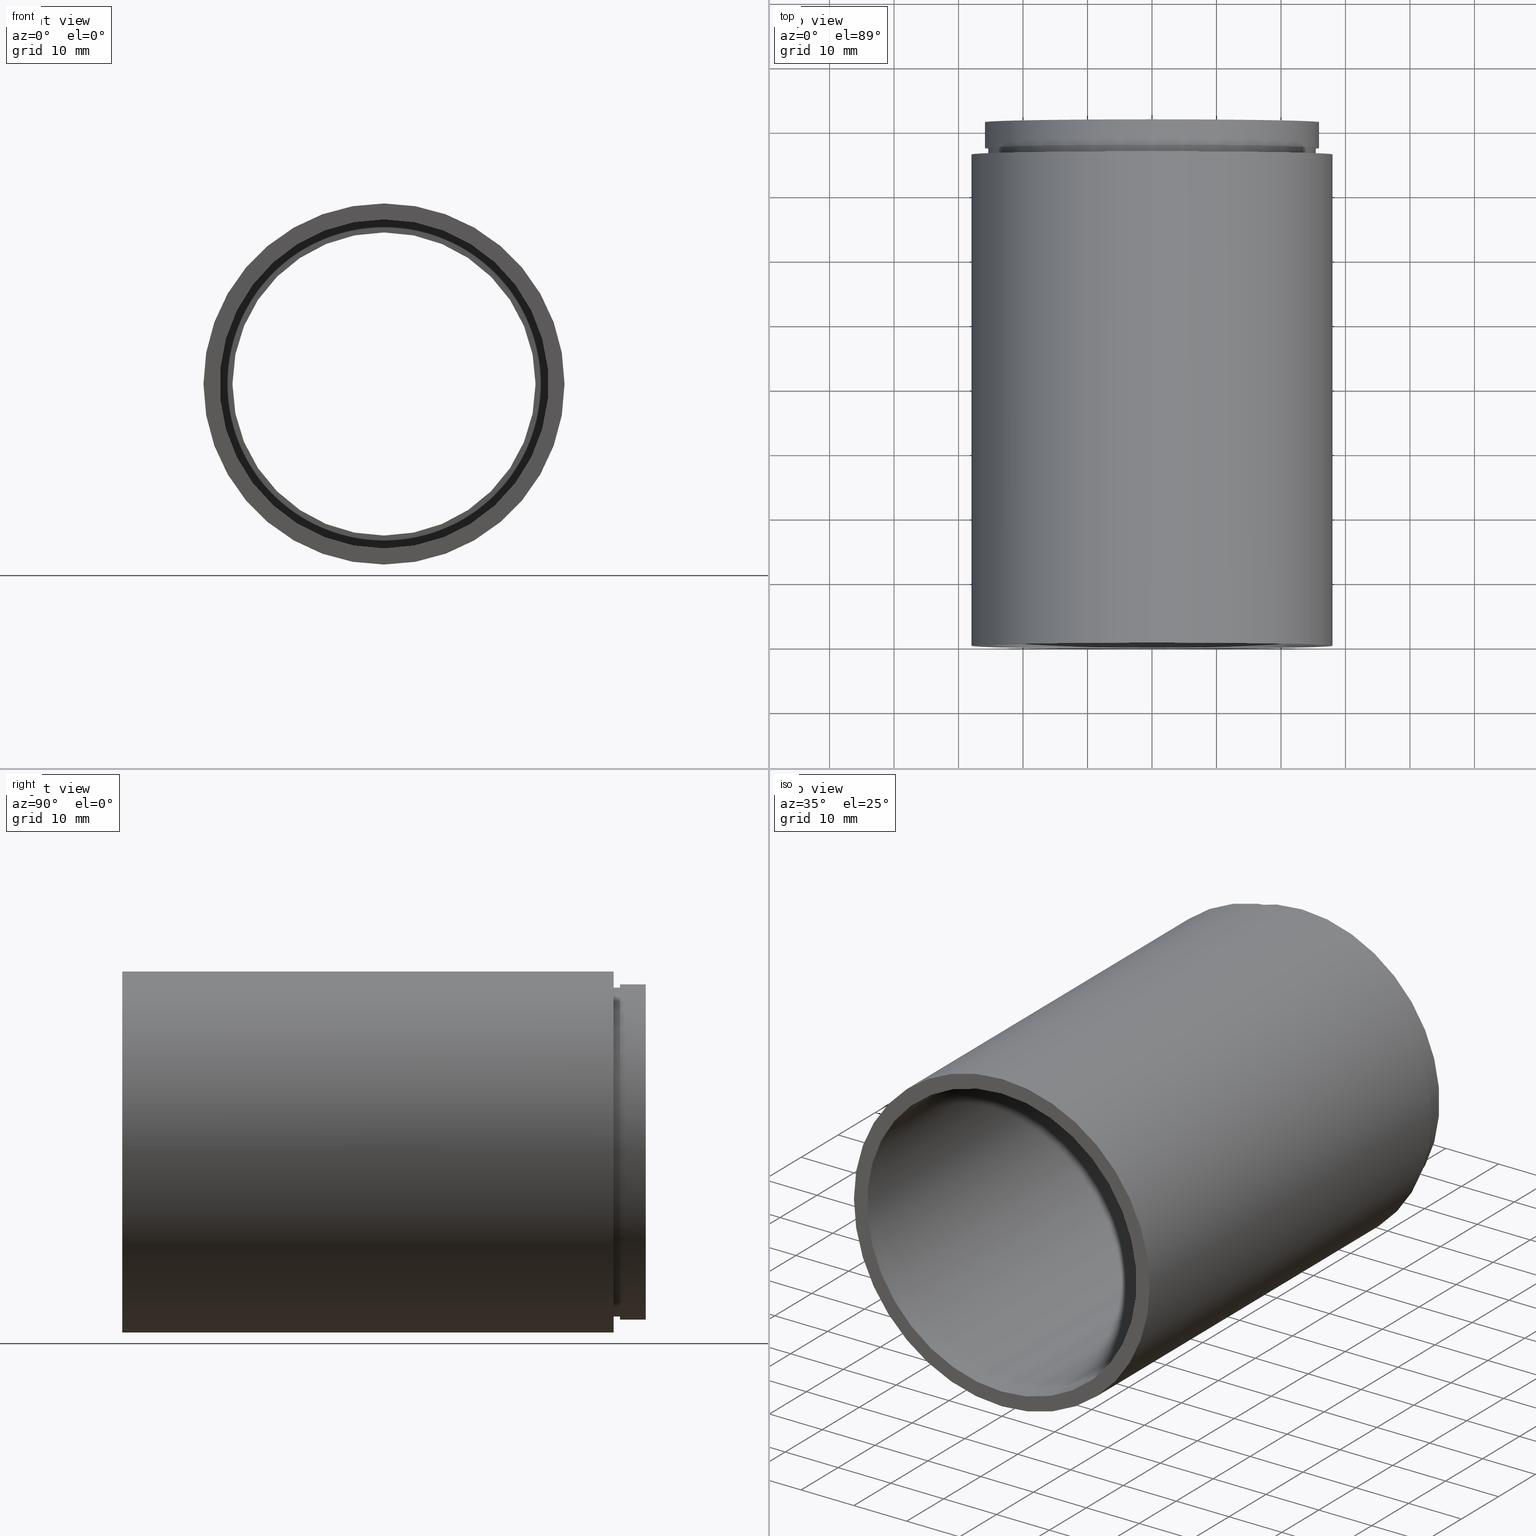
[diagram: canonical four-view strip — front | top / right | iso, engineering-drawing reading convention]
A machine part, canonical four-view strip (front | top / right | iso — engineering-drawing reading convention). The complete STEP part file that produces these views, byte-faithful:
ISO-10303-21;
HEADER;
FILE_DESCRIPTION (( 'STEP AP214' ),
    '1' );
FILE_NAME ('503000.STEP',
    '2019-09-05T01:39:25',
    ( '' ),
    ( '' ),
    'SwSTEP 2.0',
    'SolidWorks 2016',
    '' );
FILE_SCHEMA (( 'AUTOMOTIVE_DESIGN' ));
ENDSEC;

DATA;
#1 = ORIENTED_EDGE ( 'NONE', *, *, #612, .T. ) ;
#2 = DIRECTION ( 'NONE',  ( -0.0000000000000000000, 1.000000000000000000, -0.0000000000000000000 ) ) ;
#3 = CIRCLE ( 'NONE', #330, 26.00000000000001100 ) ;
#4 = CARTESIAN_POINT ( 'NONE',  ( 3.429011037612590500E-015, 76.19999999999998900, -28.00000000000001100 ) ) ;
#5 = AXIS2_PLACEMENT_3D ( 'NONE', #212, #544, #16 ) ;
#6 = DIRECTION ( 'NONE',  ( -0.0000000000000000000, 1.000000000000000000, -0.0000000000000000000 ) ) ;
#7 = DIRECTION ( 'NONE',  ( -0.0000000000000000000, 1.000000000000000000, -0.0000000000000000000 ) ) ;
#8 = ORIENTED_EDGE ( 'NONE', *, *, #275, .F. ) ;
#9 = FILL_AREA_STYLE_COLOUR ( '', #274 ) ;
#10 = EDGE_CURVE ( 'NONE', #289, #140, #236, .T. ) ;
#11 = DIRECTION ( 'NONE',  ( 0.0000000000000000000, 0.0000000000000000000, 1.000000000000000000 ) ) ;
#12 =( NAMED_UNIT ( * ) PLANE_ANGLE_UNIT ( ) SI_UNIT ( $, .RADIAN. ) );
#13 = FACE_BOUND ( 'NONE', #133, .T. ) ;
#14 =( NAMED_UNIT ( * ) SI_UNIT ( $, .STERADIAN. ) SOLID_ANGLE_UNIT ( ) );
#15 =( LENGTH_UNIT ( ) NAMED_UNIT ( * ) SI_UNIT ( .MILLI., .METRE. ) );
#16 = DIRECTION ( 'NONE',  ( 0.0000000000000000000, 0.0000000000000000000, 1.000000000000000000 ) ) ;
#17 = CARTESIAN_POINT ( 'NONE',  ( 0.0000000000000000000, 161.3761669434274500, 0.0000000000000000000 ) ) ;
#18 = VERTEX_POINT ( 'NONE', #310 ) ;
#19 = CIRCLE ( 'NONE', #570, 23.50000000000001400 ) ;
#20 = PRESENTATION_STYLE_ASSIGNMENT (( #159 ) ) ;
#21 = AXIS2_PLACEMENT_3D ( 'NONE', #273, #600, #128 ) ;
#22 = ORIENTED_EDGE ( 'NONE', *, *, #77, .F. ) ;
#23 = EDGE_LOOP ( 'NONE', ( #161, #22, #436, #579 ) ) ;
#24 = ADVANCED_FACE ( 'NONE', ( #599 ), #520, .F. ) ;
#25 = CARTESIAN_POINT ( 'NONE',  ( 0.0000000000000000000, 74.19999999999998900, 0.0000000000000000000 ) ) ;
#26 =( GEOMETRIC_REPRESENTATION_CONTEXT ( 3 ) GLOBAL_UNCERTAINTY_ASSIGNED_CONTEXT ( ( #496 ) ) GLOBAL_UNIT_ASSIGNED_CONTEXT ( ( #59, #12, #546 ) ) REPRESENTATION_CONTEXT ( 'NONE', 'WORKASPACE' ) );
#27 =( GEOMETRIC_REPRESENTATION_CONTEXT ( 3 ) GLOBAL_UNCERTAINTY_ASSIGNED_CONTEXT ( ( #224 ) ) GLOBAL_UNIT_ASSIGNED_CONTEXT ( ( #28, #176, #33 ) ) REPRESENTATION_CONTEXT ( 'NONE', 'WORKASPACE' ) );
#28 =( LENGTH_UNIT ( ) NAMED_UNIT ( * ) SI_UNIT ( .MILLI., .METRE. ) );
#29 = VERTEX_POINT ( 'NONE', #72 ) ;
#30 = ORIENTED_EDGE ( 'NONE', *, *, #130, .T. ) ;
#31 = MECHANICAL_DESIGN_GEOMETRIC_PRESENTATION_REPRESENTATION (  '', ( #537 ), #510 ) ;
#32 = FACE_OUTER_BOUND ( 'NONE', #23, .T. ) ;
#33 =( NAMED_UNIT ( * ) SI_UNIT ( $, .STERADIAN. ) SOLID_ANGLE_UNIT ( ) );
#34 = DIRECTION ( 'NONE',  ( -0.0000000000000000000, 1.000000000000000000, -0.0000000000000000000 ) ) ;
#35 = MECHANICAL_DESIGN_GEOMETRIC_PRESENTATION_REPRESENTATION (  '', ( #62 ), #337 ) ;
#36 = EDGE_LOOP ( 'NONE', ( #61, #431 ) ) ;
#37 = ORIENTED_EDGE ( 'NONE', *, *, #267, .F. ) ;
#38 = DIRECTION ( 'NONE',  ( -0.0000000000000000000, 1.000000000000000000, -0.0000000000000000000 ) ) ;
#39 = LINE ( 'NONE', #333, #66 ) ;
#40 = DIRECTION ( 'NONE',  ( -0.0000000000000000000, 1.000000000000000000, -0.0000000000000000000 ) ) ;
#41 = FACE_OUTER_BOUND ( 'NONE', #285, .T. ) ;
#42 = EDGE_CURVE ( 'NONE', #378, #246, #353, .T. ) ;
#43 = FACE_BOUND ( 'NONE', #486, .T. ) ;
#44 = FILL_AREA_STYLE ('',( #388 ) ) ;
#45 = AXIS2_PLACEMENT_3D ( 'NONE', #89, #432, #139 ) ;
#46 = DIRECTION ( 'NONE',  ( -0.0000000000000000000, 1.000000000000000000, -0.0000000000000000000 ) ) ;
#47 = VERTEX_POINT ( 'NONE', #169 ) ;
#48 = CIRCLE ( 'NONE', #524, 23.50000000000001400 ) ;
#49 = STYLED_ITEM ( 'NONE', ( #20 ), #596 ) ;
#50 = FACE_OUTER_BOUND ( 'NONE', #439, .T. ) ;
#51 = DIRECTION ( 'NONE',  ( 0.0000000000000000000, 0.0000000000000000000, 1.000000000000000000 ) ) ;
#52 = ORIENTED_EDGE ( 'NONE', *, *, #374, .F. ) ;
#53 = DIRECTION ( 'NONE',  ( 0.0000000000000000000, 0.0000000000000000000, 1.000000000000000000 ) ) ;
#54 = AXIS2_PLACEMENT_3D ( 'NONE', #25, #423, #461 ) ;
#55 = FILL_AREA_STYLE_COLOUR ( '', #437 ) ;
#56 = DIRECTION ( 'NONE',  ( -0.0000000000000000000, 1.000000000000000000, -0.0000000000000000000 ) ) ;
#57 = DIRECTION ( 'NONE',  ( 0.0000000000000000000, 0.0000000000000000000, 1.000000000000000000 ) ) ;
#58 = CYLINDRICAL_SURFACE ( 'NONE', #166, 25.50000000000001800 ) ;
#59 =( LENGTH_UNIT ( ) NAMED_UNIT ( * ) SI_UNIT ( .MILLI., .METRE. ) );
#60 = CARTESIAN_POINT ( 'NONE',  ( 0.0000000000000000000, 161.3761669434274500, 0.0000000000000000000 ) ) ;
#61 = ORIENTED_EDGE ( 'NONE', *, *, #477, .T. ) ;
#62 = STYLED_ITEM ( 'NONE', ( #491 ), #276 ) ;
#63 =( NAMED_UNIT ( * ) PLANE_ANGLE_UNIT ( ) SI_UNIT ( $, .RADIAN. ) );
#64 = EDGE_CURVE ( 'NONE', #29, #378, #386, .T. ) ;
#65 = CARTESIAN_POINT ( 'NONE',  ( 0.0000000000000000000, -2.775557561562891400E-014, 0.0000000000000000000 ) ) ;
#66 = VECTOR ( 'NONE', #189, 1000.000000000000000 ) ;
#67 = FACE_OUTER_BOUND ( 'NONE', #99, .T. ) ;
#68 = ADVANCED_FACE ( 'NONE', ( #475 ), #287, .T. ) ;
#69 = VECTOR ( 'NONE', #533, 1000.000000000000000 ) ;
#70 = AXIS2_PLACEMENT_3D ( 'NONE', #495, #206, #585 ) ;
#71 = FILL_AREA_STYLE ('',( #361 ) ) ;
#72 = CARTESIAN_POINT ( 'NONE',  ( 2.877919977996281900E-015, 74.19999999999998900, -23.50000000000001400 ) ) ;
#73 = ORIENTED_EDGE ( 'NONE', *, *, #399, .T. ) ;
#74 = DIRECTION ( 'NONE',  ( -0.0000000000000000000, 1.000000000000000000, -0.0000000000000000000 ) ) ;
#75 = ORIENTED_EDGE ( 'NONE', *, *, #229, .T. ) ;
#76 = ADVANCED_FACE ( 'NONE', ( #13, #67 ), #464, .F. ) ;
#77 = EDGE_CURVE ( 'NONE', #378, #29, #48, .T. ) ;
#78 = ORIENTED_EDGE ( 'NONE', *, *, #339, .T. ) ;
#79 = CARTESIAN_POINT ( 'NONE',  ( 0.0000000000000000000, 161.3761669434274500, 0.0000000000000000000 ) ) ;
#80 = SURFACE_STYLE_FILL_AREA ( #497 ) ;
#81 = PLANE ( 'NONE',  #85 ) ;
#82 = EDGE_LOOP ( 'NONE', ( #37, #94, #298, #505 ) ) ;
#83 = VERTEX_POINT ( 'NONE', #466 ) ;
#84 = CARTESIAN_POINT ( 'NONE',  ( 0.0000000000000000000, 76.19999999999998900, 0.0000000000000000000 ) ) ;
#85 = AXIS2_PLACEMENT_3D ( 'NONE', #131, #512, #561 ) ;
#86 = PRESENTATION_STYLE_ASSIGNMENT (( #352 ) ) ;
#87 =( NAMED_UNIT ( * ) SI_UNIT ( $, .STERADIAN. ) SOLID_ANGLE_UNIT ( ) );
#88 = MANIFOLD_SOLID_BREP ( '��ת1', #395 ) ;
#89 = CARTESIAN_POINT ( 'NONE',  ( 0.0000000000000000000, 161.3761669434274500, 0.0000000000000000000 ) ) ;
#90 = CARTESIAN_POINT ( 'NONE',  ( 3.429011037612590500E-015, 161.3761669434274500, -28.00000000000001400 ) ) ;
#91 = LINE ( 'NONE', #411, #560 ) ;
#92 = PRESENTATION_LAYER_ASSIGNMENT (  '', '', ( #394 ) ) ;
#93 = CARTESIAN_POINT ( 'NONE',  ( 0.0000000000000000000, 73.19999999999998900, 0.0000000000000000000 ) ) ;
#94 = ORIENTED_EDGE ( 'NONE', *, *, #238, .T. ) ;
#95 = VERTEX_POINT ( 'NONE', #230 ) ;
#96 = PLANE ( 'NONE',  #220 ) ;
#97 = CARTESIAN_POINT ( 'NONE',  ( 3.184081677783119400E-015, 81.19999999999998900, -26.00000000000001100 ) ) ;
#98 = SURFACE_STYLE_FILL_AREA ( #71 ) ;
#99 = EDGE_LOOP ( 'NONE', ( #232, #470 ) ) ;
#100 = DIRECTION ( 'NONE',  ( -0.0000000000000000000, 1.000000000000000000, -0.0000000000000000000 ) ) ;
#101 = EDGE_CURVE ( 'NONE', #413, #414, #106, .T. ) ;
#102 = DIRECTION ( 'NONE',  ( -0.0000000000000000000, 1.000000000000000000, -0.0000000000000000000 ) ) ;
#103 = CARTESIAN_POINT ( 'NONE',  ( 0.0000000000000000000, 161.3761669434274500, 0.0000000000000000000 ) ) ;
#104 = FACE_BOUND ( 'NONE', #492, .T. ) ;
#105 = DIRECTION ( 'NONE',  ( -0.0000000000000000000, 1.000000000000000000, -0.0000000000000000000 ) ) ;
#106 = CIRCLE ( 'NONE', #21, 25.50000000000000700 ) ;
#107 = AXIS2_PLACEMENT_3D ( 'NONE', #244, #2, #396 ) ;
#108 = APPLICATION_PROTOCOL_DEFINITION ( 'draft international standard', 'automotive_design', 1998, #115 ) ;
#109 = LINE ( 'NONE', #295, #480 ) ;
#110 = DIRECTION ( 'NONE',  ( 0.0000000000000000000, 0.0000000000000000000, 1.000000000000000000 ) ) ;
#111 = ORIENTED_EDGE ( 'NONE', *, *, #572, .T. ) ;
#112 =( GEOMETRIC_REPRESENTATION_CONTEXT ( 3 ) GLOBAL_UNCERTAINTY_ASSIGNED_CONTEXT ( ( #390 ) ) GLOBAL_UNIT_ASSIGNED_CONTEXT ( ( #15, #258, #309 ) ) REPRESENTATION_CONTEXT ( 'NONE', 'WORKASPACE' ) );
#113 = ORIENTED_EDGE ( 'NONE', *, *, #263, .T. ) ;
#114 = FACE_OUTER_BOUND ( 'NONE', #502, .T. ) ;
#115 = APPLICATION_CONTEXT ( 'automotive_design' ) ;
#116 = COLOUR_RGB ( '',1.000000000000000000, 1.000000000000000000, 1.000000000000000000 ) ;
#117 = ADVANCED_FACE ( 'NONE', ( #135, #41 ), #81, .F. ) ;
#118 = AXIS2_PLACEMENT_3D ( 'NONE', #93, #584, #53 ) ;
#119 = MECHANICAL_DESIGN_GEOMETRIC_PRESENTATION_REPRESENTATION (  '', ( #394 ), #473 ) ;
#120 = DIRECTION ( 'NONE',  ( -0.0000000000000000000, 1.000000000000000000, -0.0000000000000000000 ) ) ;
#121 = ADVANCED_FACE ( 'NONE', ( #606 ), #259, .F. ) ;
#122 = ORIENTED_EDGE ( 'NONE', *, *, #325, .T. ) ;
#123 = DIRECTION ( 'NONE',  ( -0.0000000000000000000, 1.000000000000000000, -0.0000000000000000000 ) ) ;
#124 = ORIENTED_EDGE ( 'NONE', *, *, #254, .F. ) ;
#125 = CARTESIAN_POINT ( 'NONE',  ( 0.0000000000000000000, 161.3761669434274500, 0.0000000000000000000 ) ) ;
#126 = VECTOR ( 'NONE', #40, 1000.000000000000000 ) ;
#127 = CIRCLE ( 'NONE', #213, 25.50000000000000400 ) ;
#128 = DIRECTION ( 'NONE',  ( 0.0000000000000000000, 0.0000000000000000000, 1.000000000000000000 ) ) ;
#129 = AXIS2_PLACEMENT_3D ( 'NONE', #351, #7, #57 ) ;
#130 = EDGE_CURVE ( 'NONE', #140, #289, #419, .T. ) ;
#131 = CARTESIAN_POINT ( 'NONE',  ( 25.50000000000000700, 76.19999999999998900, 0.0000000000000000000 ) ) ;
#132 = ORIENTED_EDGE ( 'NONE', *, *, #339, .F. ) ;
#133 = EDGE_LOOP ( 'NONE', ( #52, #331 ) ) ;
#134 = DIRECTION ( 'NONE',  ( 0.0000000000000000000, 0.0000000000000000000, 1.000000000000000000 ) ) ;
#135 = FACE_BOUND ( 'NONE', #513, .T. ) ;
#136 = CIRCLE ( 'NONE', #562, 28.00000000000001100 ) ;
#137 = SURFACE_STYLE_USAGE ( .BOTH. , #336 ) ;
#138 = MECHANICAL_DESIGN_GEOMETRIC_PRESENTATION_REPRESENTATION (  '', ( #49 ), #26 ) ;
#139 = DIRECTION ( 'NONE',  ( 0.0000000000000000000, 0.0000000000000000000, 1.000000000000000000 ) ) ;
#140 = VERTEX_POINT ( 'NONE', #516 ) ;
#141 = EDGE_LOOP ( 'NONE', ( #565, #8 ) ) ;
#142 = AXIS2_PLACEMENT_3D ( 'NONE', #103, #587, #262 ) ;
#143 = SURFACE_STYLE_FILL_AREA ( #44 ) ;
#144 = EDGE_CURVE ( 'NONE', #265, #355, #559, .T. ) ;
#145 =( LENGTH_UNIT ( ) NAMED_UNIT ( * ) SI_UNIT ( .MILLI., .METRE. ) );
#146 = PRESENTATION_LAYER_ASSIGNMENT (  '', '', ( #537 ) ) ;
#147 = CARTESIAN_POINT ( 'NONE',  ( 3.184081677783119400E-015, 77.19999999999998900, -26.00000000000001100 ) ) ;
#148 = ORIENTED_EDGE ( 'NONE', *, *, #420, .T. ) ;
#149 = DIRECTION ( 'NONE',  ( -0.0000000000000000000, 1.000000000000000000, 0.0000000000000000000 ) ) ;
#150 = EDGE_LOOP ( 'NONE', ( #155, #30 ) ) ;
#151 = FACE_OUTER_BOUND ( 'NONE', #440, .T. ) ;
#152 = CARTESIAN_POINT ( 'NONE',  ( 0.0000000000000000000, -2.775557561562891400E-014, 28.00000000000001800 ) ) ;
#153 = CARTESIAN_POINT ( 'NONE',  ( 0.0000000000000000000, 161.3761669434274500, 0.0000000000000000000 ) ) ;
#154 = EDGE_CURVE ( 'NONE', #140, #469, #618, .T. ) ;
#155 = ORIENTED_EDGE ( 'NONE', *, *, #10, .T. ) ;
#156 = ORIENTED_EDGE ( 'NONE', *, *, #42, .F. ) ;
#157 = SURFACE_SIDE_STYLE ('',( #567 ) ) ;
#158 = CARTESIAN_POINT ( 'NONE',  ( 0.0000000000000000000, 74.19999999999998900, 0.0000000000000000000 ) ) ;
#159 = SURFACE_STYLE_USAGE ( .BOTH. , #569 ) ;
#160 = DIRECTION ( 'NONE',  ( 0.0000000000000000000, 0.0000000000000000000, 1.000000000000000000 ) ) ;
#161 = ORIENTED_EDGE ( 'NONE', *, *, #362, .F. ) ;
#162 = AXIS2_PLACEMENT_3D ( 'NONE', #125, #281, #134 ) ;
#163 = DIRECTION ( 'NONE',  ( -0.0000000000000000000, 1.000000000000000000, -0.0000000000000000000 ) ) ;
#164 = PRESENTATION_STYLE_ASSIGNMENT (( #553 ) ) ;
#165 = FACE_OUTER_BOUND ( 'NONE', #82, .T. ) ;
#166 = AXIS2_PLACEMENT_3D ( 'NONE', #208, #100, #11 ) ;
#167 = DIRECTION ( 'NONE',  ( 0.0000000000000000000, 0.0000000000000000000, 1.000000000000000000 ) ) ;
#168 = CYLINDRICAL_SURFACE ( 'NONE', #284, 25.50000000000000700 ) ;
#169 = CARTESIAN_POINT ( 'NONE',  ( 3.122849337825751400E-015, 77.19999999999998900, -25.50000000000000400 ) ) ;
#170 = EDGE_LOOP ( 'NONE', ( #296, #494, #171, #193 ) ) ;
#171 = ORIENTED_EDGE ( 'NONE', *, *, #368, .T. ) ;
#172 = SURFACE_STYLE_FILL_AREA ( #429 ) ;
#173 = PRESENTATION_STYLE_ASSIGNMENT (( #357 ) ) ;
#174 = ADVANCED_FACE ( 'NONE', ( #424 ), #181, .F. ) ;
#175 = AXIS2_PLACEMENT_3D ( 'NONE', #317, #455, #369 ) ;
#176 =( NAMED_UNIT ( * ) PLANE_ANGLE_UNIT ( ) SI_UNIT ( $, .RADIAN. ) );
#177 = CARTESIAN_POINT ( 'NONE',  ( 0.0000000000000000000, 74.19999999999998900, 0.0000000000000000000 ) ) ;
#178 = AXIS2_PLACEMENT_3D ( 'NONE', #613, #38, #434 ) ;
#179 = ORIENTED_EDGE ( 'NONE', *, *, #489, .F. ) ;
#180 = DIRECTION ( 'NONE',  ( -0.0000000000000000000, 1.000000000000000000, -0.0000000000000000000 ) ) ;
#181 = CYLINDRICAL_SURFACE ( 'NONE', #316, 23.50000000000001400 ) ;
#182 = FACE_OUTER_BOUND ( 'NONE', #416, .T. ) ;
#183 = LINE ( 'NONE', #575, #282 ) ;
#184 = DIRECTION ( 'NONE',  ( 0.0000000000000000000, -1.000000000000000000, 0.0000000000000000000 ) ) ;
#185 = ORIENTED_EDGE ( 'NONE', *, *, #64, .F. ) ;
#186 = ORIENTED_EDGE ( 'NONE', *, *, #275, .T. ) ;
#187 = DIRECTION ( 'NONE',  ( 0.0000000000000000000, 0.0000000000000000000, 1.000000000000000000 ) ) ;
#188 =( GEOMETRIC_REPRESENTATION_CONTEXT ( 3 ) GLOBAL_UNCERTAINTY_ASSIGNED_CONTEXT ( ( #538 ) ) GLOBAL_UNIT_ASSIGNED_CONTEXT ( ( #145, #614, #87 ) ) REPRESENTATION_CONTEXT ( 'NONE', 'WORKASPACE' ) );
#189 = DIRECTION ( 'NONE',  ( -0.0000000000000000000, 1.000000000000000000, -0.0000000000000000000 ) ) ;
#190 = SURFACE_STYLE_FILL_AREA ( #312 ) ;
#191 = VECTOR ( 'NONE', #56, 1000.000000000000000 ) ;
#192 = DIRECTION ( 'NONE',  ( -0.0000000000000000000, 1.000000000000000000, -0.0000000000000000000 ) ) ;
#193 = ORIENTED_EDGE ( 'NONE', *, *, #385, .F. ) ;
#194 = DIRECTION ( 'NONE',  ( 0.0000000000000000000, 0.0000000000000000000, 1.000000000000000000 ) ) ;
#195 = AXIS2_PLACEMENT_3D ( 'NONE', #329, #123, #223 ) ;
#196 = CIRCLE ( 'NONE', #129, 25.50000000000000400 ) ;
#197 = DIRECTION ( 'NONE',  ( 0.0000000000000000000, 0.0000000000000000000, 1.000000000000000000 ) ) ;
#198 = LINE ( 'NONE', #574, #69 ) ;
#199 = AXIS2_PLACEMENT_3D ( 'NONE', #302, #408, #297 ) ;
#200 = DIRECTION ( 'NONE',  ( -0.0000000000000000000, 1.000000000000000000, -0.0000000000000000000 ) ) ;
#201 = ORIENTED_EDGE ( 'NONE', *, *, #477, .F. ) ;
#202 = CARTESIAN_POINT ( 'NONE',  ( 0.0000000000000000000, 74.19999999999998900, 23.50000000000001400 ) ) ;
#203 = DIRECTION ( 'NONE',  ( -0.0000000000000000000, 1.000000000000000000, -0.0000000000000000000 ) ) ;
#204 = DIRECTION ( 'NONE',  ( -0.0000000000000000000, 1.000000000000000000, -0.0000000000000000000 ) ) ;
#205 = EDGE_CURVE ( 'NONE', #393, #616, #551, .T. ) ;
#206 = DIRECTION ( 'NONE',  ( -0.0000000000000000000, 1.000000000000000000, -0.0000000000000000000 ) ) ;
#207 = AXIS2_PLACEMENT_3D ( 'NONE', #17, #590, #160 ) ;
#208 = CARTESIAN_POINT ( 'NONE',  ( 0.0000000000000000000, 161.3761669434274500, 0.0000000000000000000 ) ) ;
#209 = PRESENTATION_LAYER_ASSIGNMENT (  '', '', ( #454 ) ) ;
#210 = CARTESIAN_POINT ( 'NONE',  ( 0.0000000000000000000, 74.19999999999998900, 0.0000000000000000000 ) ) ;
#211 = ORIENTED_EDGE ( 'NONE', *, *, #428, .T. ) ;
#212 = CARTESIAN_POINT ( 'NONE',  ( 28.00000000000001800, -1.408179048343280700E-014, 0.0000000000000000000 ) ) ;
#213 = AXIS2_PLACEMENT_3D ( 'NONE', #404, #536, #445 ) ;
#214 = PRODUCT ( '503000', '503000', '', ( #409 ) ) ;
#215 = FACE_BOUND ( 'NONE', #150, .T. ) ;
#216 = CARTESIAN_POINT ( 'NONE',  ( 0.0000000000000000000, 76.19999999999998900, 28.00000000000001100 ) ) ;
#217 = ORIENTED_EDGE ( 'NONE', *, *, #463, .T. ) ;
#218 = CARTESIAN_POINT ( 'NONE',  ( 0.0000000000000000000, 161.3761669434274500, 23.50000000000001400 ) ) ;
#219 = ORIENTED_EDGE ( 'NONE', *, *, #205, .T. ) ;
#220 = AXIS2_PLACEMENT_3D ( 'NONE', #488, #529, #438 ) ;
#221 = AXIS2_PLACEMENT_3D ( 'NONE', #233, #34, #283 ) ;
#222 = DIRECTION ( 'NONE',  ( -0.0000000000000000000, 1.000000000000000000, -0.0000000000000000000 ) ) ;
#223 = DIRECTION ( 'NONE',  ( 0.0000000000000000000, 0.0000000000000000000, 1.000000000000000000 ) ) ;
#224 = UNCERTAINTY_MEASURE_WITH_UNIT (LENGTH_MEASURE( 1.000000000000000100E-005 ), #28, 'distance_accuracy_value', 'NONE');
#225 = PRESENTATION_STYLE_ASSIGNMENT (( #372 ) ) ;
#226 = CIRCLE ( 'NONE', #266, 26.10000000000001600 ) ;
#227 = DIRECTION ( 'NONE',  ( 0.0000000000000000000, 0.0000000000000000000, 1.000000000000000000 ) ) ;
#228 = LINE ( 'NONE', #527, #326 ) ;
#229 = EDGE_CURVE ( 'NONE', #338, #616, #450, .T. ) ;
#230 = CARTESIAN_POINT ( 'NONE',  ( 0.0000000000000000000, 73.19999999999998900, 26.10000000000001900 ) ) ;
#231 = ORIENTED_EDGE ( 'NONE', *, *, #77, .T. ) ;
#232 = ORIENTED_EDGE ( 'NONE', *, *, #549, .T. ) ;
#233 = CARTESIAN_POINT ( 'NONE',  ( 0.0000000000000000000, 77.19999999999998900, 0.0000000000000000000 ) ) ;
#234 = DIRECTION ( 'NONE',  ( 0.0000000000000000000, -0.0000000000000000000, -1.000000000000000000 ) ) ;
#235 = CARTESIAN_POINT ( 'NONE',  ( 0.0000000000000000000, 161.3761669434274500, 28.00000000000001400 ) ) ;
#236 = CIRCLE ( 'NONE', #506, 25.50000000000001800 ) ;
#237 = ORIENTED_EDGE ( 'NONE', *, *, #399, .F. ) ;
#238 = EDGE_CURVE ( 'NONE', #18, #534, #39, .T. ) ;
#239 = SURFACE_SIDE_STYLE ('',( #143 ) ) ;
#240 = COLOUR_RGB ( '',1.000000000000000000, 1.000000000000000000, 1.000000000000000000 ) ;
#241 = CIRCLE ( 'NONE', #467, 28.00000000000001800 ) ;
#242 = CIRCLE ( 'NONE', #107, 25.50000000000000700 ) ;
#243 = STYLED_ITEM ( 'NONE', ( #86 ), #460 ) ;
#244 = CARTESIAN_POINT ( 'NONE',  ( 0.0000000000000000000, 76.19999999999998900, 0.0000000000000000000 ) ) ;
#245 = CARTESIAN_POINT ( 'NONE',  ( 0.0000000000000000000, 76.19999999999998900, 25.50000000000000700 ) ) ;
#246 = VERTEX_POINT ( 'NONE', #476 ) ;
#247 = ORIENTED_EDGE ( 'NONE', *, *, #572, .F. ) ;
#248 = AXIS2_PLACEMENT_3D ( 'NONE', #60, #105, #449 ) ;
#249 = FACE_OUTER_BOUND ( 'NONE', #601, .T. ) ;
#250 = CIRCLE ( 'NONE', #482, 26.10000000000001600 ) ;
#251 = DIRECTION ( 'NONE',  ( 0.0000000000000000000, 0.0000000000000000000, 1.000000000000000000 ) ) ;
#252 = STYLED_ITEM ( 'NONE', ( #173 ), #547 ) ;
#253 = CARTESIAN_POINT ( 'NONE',  ( 0.0000000000000000000, 81.19999999999998900, 0.0000000000000000000 ) ) ;
#254 = EDGE_CURVE ( 'NONE', #355, #265, #573, .T. ) ;
#255 =( LENGTH_UNIT ( ) NAMED_UNIT ( * ) SI_UNIT ( .MILLI., .METRE. ) );
#256 = ORIENTED_EDGE ( 'NONE', *, *, #101, .F. ) ;
#257 = DIRECTION ( 'NONE',  ( 0.0000000000000000000, 0.0000000000000000000, 1.000000000000000000 ) ) ;
#258 =( NAMED_UNIT ( * ) PLANE_ANGLE_UNIT ( ) SI_UNIT ( $, .RADIAN. ) );
#259 = CYLINDRICAL_SURFACE ( 'NONE', #162, 25.50000000000001800 ) ;
#260 =( LENGTH_UNIT ( ) NAMED_UNIT ( * ) SI_UNIT ( .MILLI., .METRE. ) );
#261 =( NAMED_UNIT ( * ) SI_UNIT ( $, .STERADIAN. ) SOLID_ANGLE_UNIT ( ) );
#262 = DIRECTION ( 'NONE',  ( 0.0000000000000000000, 0.0000000000000000000, 1.000000000000000000 ) ) ;
#263 = EDGE_CURVE ( 'NONE', #413, #47, #324, .T. ) ;
#264 = VERTEX_POINT ( 'NONE', #474 ) ;
#265 = VERTEX_POINT ( 'NONE', #384 ) ;
#266 = AXIS2_PLACEMENT_3D ( 'NONE', #210, #102, #306 ) ;
#267 = EDGE_CURVE ( 'NONE', #18, #95, #498, .T. ) ;
#268 = FACE_OUTER_BOUND ( 'NONE', #545, .T. ) ;
#269 = CARTESIAN_POINT ( 'NONE',  ( 0.0000000000000000000, -2.775557561562891400E-014, 0.0000000000000000000 ) ) ;
#270 = ADVANCED_FACE ( 'NONE', ( #104, #508 ), #619, .F. ) ;
#271 = EDGE_LOOP ( 'NONE', ( #185, #526, #211, #156 ) ) ;
#272 = ADVANCED_FACE ( 'NONE', ( #32 ), #397, .F. ) ;
#273 = CARTESIAN_POINT ( 'NONE',  ( 0.0000000000000000000, 76.19999999999998900, 0.0000000000000000000 ) ) ;
#274 = COLOUR_RGB ( '',1.000000000000000000, 1.000000000000000000, 1.000000000000000000 ) ;
#275 = EDGE_CURVE ( 'NONE', #571, #393, #380, .T. ) ;
#276 = ADVANCED_BREP_SHAPE_REPRESENTATION ( '503000', ( #88, #620 ), #112 ) ;
#277 = ADVANCED_FACE ( 'NONE', ( #249 ), #487, .T. ) ;
#278 = ORIENTED_EDGE ( 'NONE', *, *, #205, .F. ) ;
#279 = ORIENTED_EDGE ( 'NONE', *, *, #557, .T. ) ;
#280 = FILL_AREA_STYLE ('',( #468 ) ) ;
#281 = DIRECTION ( 'NONE',  ( -0.0000000000000000000, 1.000000000000000000, -0.0000000000000000000 ) ) ;
#282 = VECTOR ( 'NONE', #6, 1000.000000000000000 ) ;
#283 = DIRECTION ( 'NONE',  ( 0.0000000000000000000, 0.0000000000000000000, 1.000000000000000000 ) ) ;
#284 = AXIS2_PLACEMENT_3D ( 'NONE', #153, #624, #194 ) ;
#285 = EDGE_LOOP ( 'NONE', ( #73, #75 ) ) ;
#286 = CARTESIAN_POINT ( 'NONE',  ( 0.0000000000000000000, -2.775557561562891400E-014, 0.0000000000000000000 ) ) ;
#287 = CYLINDRICAL_SURFACE ( 'NONE', #499, 28.00000000000001400 ) ;
#288 = COLOUR_RGB ( '',1.000000000000000000, 1.000000000000000000, 1.000000000000000000 ) ;
#289 = VERTEX_POINT ( 'NONE', #622 ) ;
#290 = AXIS2_PLACEMENT_3D ( 'NONE', #364, #163, #311 ) ;
#291 = EDGE_CURVE ( 'NONE', #414, #370, #504, .T. ) ;
#292 = COLOUR_RGB ( '',1.000000000000000000, 1.000000000000000000, 1.000000000000000000 ) ;
#293 = SURFACE_STYLE_FILL_AREA ( #604 ) ;
#294 = CYLINDRICAL_SURFACE ( 'NONE', #392, 26.00000000000001100 ) ;
#295 = CARTESIAN_POINT ( 'NONE',  ( 0.0000000000000000000, 161.3761669434274500, 26.10000000000001900 ) ) ;
#296 = ORIENTED_EDGE ( 'NONE', *, *, #407, .F. ) ;
#297 = DIRECTION ( 'NONE',  ( 0.0000000000000000000, 0.0000000000000000000, 1.000000000000000000 ) ) ;
#298 = ORIENTED_EDGE ( 'NONE', *, *, #489, .T. ) ;
#299 = DIRECTION ( 'NONE',  ( -0.0000000000000000000, 1.000000000000000000, -0.0000000000000000000 ) ) ;
#300 = CARTESIAN_POINT ( 'NONE',  ( 0.0000000000000000000, 81.19999999999998900, 26.00000000000001100 ) ) ;
#301 = PRESENTATION_STYLE_ASSIGNMENT (( #522 ) ) ;
#302 = CARTESIAN_POINT ( 'NONE',  ( 0.0000000000000000000, 81.19999999999998900, 0.0000000000000000000 ) ) ;
#303 = PRODUCT_DEFINITION ( 'δ֪', '', #451, #593 ) ;
#304 = EDGE_CURVE ( 'NONE', #246, #264, #19, .T. ) ;
#305 = ORIENTED_EDGE ( 'NONE', *, *, #238, .F. ) ;
#306 = DIRECTION ( 'NONE',  ( 0.0000000000000000000, 0.0000000000000000000, 1.000000000000000000 ) ) ;
#307 =( LENGTH_UNIT ( ) NAMED_UNIT ( * ) SI_UNIT ( .MILLI., .METRE. ) );
#308 = CIRCLE ( 'NONE', #199, 26.00000000000001100 ) ;
#309 =( NAMED_UNIT ( * ) SI_UNIT ( $, .STERADIAN. ) SOLID_ANGLE_UNIT ( ) );
#310 = CARTESIAN_POINT ( 'NONE',  ( 3.196328145774594300E-015, 73.19999999999998900, -26.10000000000001900 ) ) ;
#311 = DIRECTION ( 'NONE',  ( 0.0000000000000000000, 0.0000000000000000000, 1.000000000000000000 ) ) ;
#312 = FILL_AREA_STYLE ('',( #55 ) ) ;
#313 = ORIENTED_EDGE ( 'NONE', *, *, #368, .F. ) ;
#314 = ORIENTED_EDGE ( 'NONE', *, *, #582, .T. ) ;
#315 = VECTOR ( 'NONE', #509, 1000.000000000000000 ) ;
#316 = AXIS2_PLACEMENT_3D ( 'NONE', #79, #180, #433 ) ;
#317 = CARTESIAN_POINT ( 'NONE',  ( 0.0000000000000000000, 161.3761669434274500, 0.0000000000000000000 ) ) ;
#318 = ADVANCED_FACE ( 'NONE', ( #114, #611 ), #96, .F. ) ;
#319 =( NAMED_UNIT ( * ) SI_UNIT ( $, .STERADIAN. ) SOLID_ANGLE_UNIT ( ) );
#320 = COLOUR_RGB ( '',1.000000000000000000, 1.000000000000000000, 1.000000000000000000 ) ;
#321 = ADVANCED_FACE ( 'NONE', ( #151, #43 ), #581, .F. ) ;
#322 = ORIENTED_EDGE ( 'NONE', *, *, #101, .T. ) ;
#323 = FILL_AREA_STYLE_COLOUR ( '', #116 ) ;
#324 = LINE ( 'NONE', #383, #478 ) ;
#325 = EDGE_CURVE ( 'NONE', #95, #83, #109, .T. ) ;
#326 = VECTOR ( 'NONE', #348, 1000.000000000000000 ) ;
#327 = DIRECTION ( 'NONE',  ( 0.0000000000000000000, 0.0000000000000000000, 1.000000000000000000 ) ) ;
#328 = PRODUCT_DEFINITION_SHAPE ( 'NONE', 'NONE',  #303 ) ;
#329 = CARTESIAN_POINT ( 'NONE',  ( 0.0000000000000000000, -2.775557561562891400E-014, 0.0000000000000000000 ) ) ;
#330 = AXIS2_PLACEMENT_3D ( 'NONE', #253, #299, #197 ) ;
#331 = ORIENTED_EDGE ( 'NONE', *, *, #612, .F. ) ;
#332 = ORIENTED_EDGE ( 'NONE', *, *, #407, .T. ) ;
#333 = CARTESIAN_POINT ( 'NONE',  ( 3.196328145774594300E-015, 161.3761669434274500, -26.10000000000001900 ) ) ;
#334 =( NAMED_UNIT ( * ) PLANE_ANGLE_UNIT ( ) SI_UNIT ( $, .RADIAN. ) );
#335 = DIRECTION ( 'NONE',  ( -0.0000000000000000000, 1.000000000000000000, -0.0000000000000000000 ) ) ;
#336 = SURFACE_SIDE_STYLE ('',( #172 ) ) ;
#337 =( GEOMETRIC_REPRESENTATION_CONTEXT ( 3 ) GLOBAL_UNCERTAINTY_ASSIGNED_CONTEXT ( ( #340 ) ) GLOBAL_UNIT_ASSIGNED_CONTEXT ( ( #307, #63, #261 ) ) REPRESENTATION_CONTEXT ( 'NONE', 'WORKASPACE' ) );
#338 = VERTEX_POINT ( 'NONE', #4 ) ;
#339 = EDGE_CURVE ( 'NONE', #414, #413, #242, .T. ) ;
#340 = UNCERTAINTY_MEASURE_WITH_UNIT (LENGTH_MEASURE( 1.000000000000000100E-005 ), #307, 'distance_accuracy_value', 'NONE');
#341 = CYLINDRICAL_SURFACE ( 'NONE', #248, 26.00000000000001100 ) ;
#342 = PRESENTATION_LAYER_ASSIGNMENT (  '', '', ( #243 ) ) ;
#343 = CARTESIAN_POINT ( 'NONE',  ( 0.0000000000000000000, 81.19999999999998900, 0.0000000000000000000 ) ) ;
#344 = CYLINDRICAL_SURFACE ( 'NONE', #142, 26.10000000000001900 ) ;
#345 = ORIENTED_EDGE ( 'NONE', *, *, #291, .T. ) ;
#346 = DIRECTION ( 'NONE',  ( -0.0000000000000000000, 1.000000000000000000, -0.0000000000000000000 ) ) ;
#347 = EDGE_LOOP ( 'NONE', ( #231, #417 ) ) ;
#348 = DIRECTION ( 'NONE',  ( -0.0000000000000000000, 1.000000000000000000, -0.0000000000000000000 ) ) ;
#349 = DIRECTION ( 'NONE',  ( 0.0000000000000000000, 0.0000000000000000000, 1.000000000000000000 ) ) ;
#350 = AXIS2_PLACEMENT_3D ( 'NONE', #389, #46, #519 ) ;
#351 = CARTESIAN_POINT ( 'NONE',  ( 0.0000000000000000000, 77.19999999999998900, 0.0000000000000000000 ) ) ;
#352 = SURFACE_STYLE_USAGE ( .BOTH. , #157 ) ;
#353 = LINE ( 'NONE', #218, #401 ) ;
#354 = CARTESIAN_POINT ( 'NONE',  ( 3.196328145774593900E-015, 74.19999999999998900, -26.10000000000001600 ) ) ;
#355 = VERTEX_POINT ( 'NONE', #147 ) ;
#356 = CARTESIAN_POINT ( 'NONE',  ( 0.0000000000000000000, 0.0000000000000000000, 0.0000000000000000000 ) ) ;
#357 = SURFACE_STYLE_USAGE ( .BOTH. , #400 ) ;
#358 = PRESENTATION_STYLE_ASSIGNMENT (( #137 ) ) ;
#359 = APPLICATION_PROTOCOL_DEFINITION ( 'draft international standard', 'automotive_design', 1998, #446 ) ;
#360 =( NAMED_UNIT ( * ) PLANE_ANGLE_UNIT ( ) SI_UNIT ( $, .RADIAN. ) );
#361 = FILL_AREA_STYLE_COLOUR ( '', #320 ) ;
#362 = EDGE_CURVE ( 'NONE', #29, #264, #228, .T. ) ;
#363 = SHAPE_DEFINITION_REPRESENTATION ( #328, #276 ) ;
#364 = CARTESIAN_POINT ( 'NONE',  ( 0.0000000000000000000, 73.19999999999998900, 0.0000000000000000000 ) ) ;
#365 = EDGE_LOOP ( 'NONE', ( #217, #148, #237, #278 ) ) ;
#366 = ORIENTED_EDGE ( 'NONE', *, *, #263, .F. ) ;
#367 = PRESENTATION_LAYER_ASSIGNMENT (  '', '', ( #252 ) ) ;
#368 = EDGE_CURVE ( 'NONE', #265, #588, #198, .T. ) ;
#369 = DIRECTION ( 'NONE',  ( 0.0000000000000000000, 0.0000000000000000000, 1.000000000000000000 ) ) ;
#370 = VERTEX_POINT ( 'NONE', #525 ) ;
#371 = ORIENTED_EDGE ( 'NONE', *, *, #435, .F. ) ;
#372 = SURFACE_STYLE_USAGE ( .BOTH. , #426 ) ;
#373 = ADVANCED_FACE ( 'NONE', ( #50 ), #168, .T. ) ;
#374 = EDGE_CURVE ( 'NONE', #462, #469, #453, .T. ) ;
#375 = FACE_OUTER_BOUND ( 'NONE', #550, .T. ) ;
#376 = MECHANICAL_DESIGN_GEOMETRIC_PRESENTATION_REPRESENTATION (  '', ( #243 ), #412 ) ;
#377 = ORIENTED_EDGE ( 'NONE', *, *, #154, .T. ) ;
#378 = VERTEX_POINT ( 'NONE', #202 ) ;
#379 = DIRECTION ( 'NONE',  ( 0.0000000000000000000, -0.0000000000000000000, -1.000000000000000000 ) ) ;
#380 = CIRCLE ( 'NONE', #542, 28.00000000000001800 ) ;
#381 = MECHANICAL_DESIGN_GEOMETRIC_PRESENTATION_REPRESENTATION (  '', ( #252 ), #597 ) ;
#382 = LINE ( 'NONE', #90, #191 ) ;
#383 = CARTESIAN_POINT ( 'NONE',  ( 3.122849337825751800E-015, 161.3761669434274500, -25.50000000000000700 ) ) ;
#384 = CARTESIAN_POINT ( 'NONE',  ( 0.0000000000000000000, 77.19999999999998900, 26.00000000000001100 ) ) ;
#385 = EDGE_CURVE ( 'NONE', #387, #588, #3, .T. ) ;
#386 = CIRCLE ( 'NONE', #54, 23.50000000000001400 ) ;
#387 = VERTEX_POINT ( 'NONE', #97 ) ;
#388 = FILL_AREA_STYLE_COLOUR ( '', #292 ) ;
#389 = CARTESIAN_POINT ( 'NONE',  ( 0.0000000000000000000, 73.19999999999998900, 0.0000000000000000000 ) ) ;
#390 = UNCERTAINTY_MEASURE_WITH_UNIT (LENGTH_MEASURE( 1.000000000000000100E-005 ), #15, 'distance_accuracy_value', 'NONE');
#391 = CARTESIAN_POINT ( 'NONE',  ( 26.00000000000001100, 77.19999999999998900, 0.0000000000000000000 ) ) ;
#392 = AXIS2_PLACEMENT_3D ( 'NONE', #406, #452, #415 ) ;
#393 = VERTEX_POINT ( 'NONE', #152 ) ;
#394 = STYLED_ITEM ( 'NONE', ( #225 ), #121 ) ;
#395 = CLOSED_SHELL ( 'NONE', ( #607, #121, #68, #277, #596, #174, #272, #270, #547, #321, #373, #117, #602, #548, #460, #76, #24, #318 ) ) ;
#396 = DIRECTION ( 'NONE',  ( 0.0000000000000000000, 0.0000000000000000000, 1.000000000000000000 ) ) ;
#397 = CYLINDRICAL_SURFACE ( 'NONE', #178, 23.50000000000001400 ) ;
#398 = CARTESIAN_POINT ( 'NONE',  ( 0.0000000000000000000, 161.3761669434274500, 25.50000000000000700 ) ) ;
#399 = EDGE_CURVE ( 'NONE', #616, #338, #136, .T. ) ;
#400 = SURFACE_SIDE_STYLE ('',( #80 ) ) ;
#401 = VECTOR ( 'NONE', #120, 1000.000000000000000 ) ;
#402 = FILL_AREA_STYLE ('',( #9 ) ) ;
#403 = ORIENTED_EDGE ( 'NONE', *, *, #374, .T. ) ;
#404 = CARTESIAN_POINT ( 'NONE',  ( 0.0000000000000000000, 77.19999999999998900, 0.0000000000000000000 ) ) ;
#405 = FILL_AREA_STYLE_COLOUR ( '', #288 ) ;
#406 = CARTESIAN_POINT ( 'NONE',  ( 0.0000000000000000000, 161.3761669434274500, 0.0000000000000000000 ) ) ;
#407 = EDGE_CURVE ( 'NONE', #355, #387, #183, .T. ) ;
#408 = DIRECTION ( 'NONE',  ( -0.0000000000000000000, 1.000000000000000000, -0.0000000000000000000 ) ) ;
#409 = PRODUCT_CONTEXT ( 'NONE', #446, 'mechanical' ) ;
#410 = UNCERTAINTY_MEASURE_WITH_UNIT (LENGTH_MEASURE( 1.000000000000000100E-005 ), #554, 'distance_accuracy_value', 'NONE');
#411 = CARTESIAN_POINT ( 'NONE',  ( 0.0000000000000000000, 161.3761669434274500, 25.50000000000001800 ) ) ;
#412 =( GEOMETRIC_REPRESENTATION_CONTEXT ( 3 ) GLOBAL_UNCERTAINTY_ASSIGNED_CONTEXT ( ( #448 ) ) GLOBAL_UNIT_ASSIGNED_CONTEXT ( ( #255, #583, #14 ) ) REPRESENTATION_CONTEXT ( 'NONE', 'WORKASPACE' ) );
#413 = VERTEX_POINT ( 'NONE', #441 ) ;
#414 = VERTEX_POINT ( 'NONE', #245 ) ;
#415 = DIRECTION ( 'NONE',  ( 0.0000000000000000000, 0.0000000000000000000, 1.000000000000000000 ) ) ;
#416 = EDGE_LOOP ( 'NONE', ( #615, #186, #219, #532 ) ) ;
#417 = ORIENTED_EDGE ( 'NONE', *, *, #64, .T. ) ;
#418 =( NAMED_UNIT ( * ) PLANE_ANGLE_UNIT ( ) SI_UNIT ( $, .RADIAN. ) );
#419 = CIRCLE ( 'NONE', #195, 25.50000000000001800 ) ;
#420 = EDGE_CURVE ( 'NONE', #571, #338, #382, .T. ) ;
#421 = CARTESIAN_POINT ( 'NONE',  ( 0.0000000000000000000, 77.19999999999998900, 0.0000000000000000000 ) ) ;
#422 = ORIENTED_EDGE ( 'NONE', *, *, #435, .T. ) ;
#423 = DIRECTION ( 'NONE',  ( -0.0000000000000000000, 1.000000000000000000, -0.0000000000000000000 ) ) ;
#424 = FACE_OUTER_BOUND ( 'NONE', #271, .T. ) ;
#425 = STYLED_ITEM ( 'NONE', ( #301 ), #174 ) ;
#426 = SURFACE_SIDE_STYLE ('',( #479 ) ) ;
#427 = CARTESIAN_POINT ( 'NONE',  ( 23.50000000000001400, 81.19999999999998900, 0.0000000000000000000 ) ) ;
#428 = EDGE_CURVE ( 'NONE', #264, #246, #540, .T. ) ;
#429 = FILL_AREA_STYLE ('',( #566 ) ) ;
#430 = ORIENTED_EDGE ( 'NONE', *, *, #582, .F. ) ;
#431 = ORIENTED_EDGE ( 'NONE', *, *, #385, .T. ) ;
#432 = DIRECTION ( 'NONE',  ( -0.0000000000000000000, 1.000000000000000000, -0.0000000000000000000 ) ) ;
#433 = DIRECTION ( 'NONE',  ( 0.0000000000000000000, 0.0000000000000000000, 1.000000000000000000 ) ) ;
#434 = DIRECTION ( 'NONE',  ( 0.0000000000000000000, 0.0000000000000000000, 1.000000000000000000 ) ) ;
#435 = EDGE_CURVE ( 'NONE', #47, #370, #127, .T. ) ;
#436 = ORIENTED_EDGE ( 'NONE', *, *, #42, .T. ) ;
#437 = COLOUR_RGB ( '',1.000000000000000000, 1.000000000000000000, 1.000000000000000000 ) ;
#438 = DIRECTION ( 'NONE',  ( 0.0000000000000000000, 0.0000000000000000000, 1.000000000000000000 ) ) ;
#439 = EDGE_LOOP ( 'NONE', ( #366, #322, #345, #371 ) ) ;
#440 = EDGE_LOOP ( 'NONE', ( #578, #124 ) ) ;
#441 = CARTESIAN_POINT ( 'NONE',  ( 3.122849337825751800E-015, 76.19999999999998900, -25.50000000000000700 ) ) ;
#442 = PLANE ( 'NONE',  #5 ) ;
#443 = MECHANICAL_DESIGN_GEOMETRIC_PRESENTATION_REPRESENTATION (  '', ( #454 ), #27 ) ;
#444 = CARTESIAN_POINT ( 'NONE',  ( 3.429011037612591200E-015, -2.775557561562891400E-014, -28.00000000000002100 ) ) ;
#445 = DIRECTION ( 'NONE',  ( 0.0000000000000000000, 0.0000000000000000000, 1.000000000000000000 ) ) ;
#446 = APPLICATION_CONTEXT ( 'automotive_design' ) ;
#447 = ORIENTED_EDGE ( 'NONE', *, *, #428, .F. ) ;
#448 = UNCERTAINTY_MEASURE_WITH_UNIT (LENGTH_MEASURE( 1.000000000000000100E-005 ), #255, 'distance_accuracy_value', 'NONE');
#449 = DIRECTION ( 'NONE',  ( 0.0000000000000000000, 0.0000000000000000000, 1.000000000000000000 ) ) ;
#450 = CIRCLE ( 'NONE', #518, 28.00000000000001100 ) ;
#451 = PRODUCT_DEFINITION_FORMATION_WITH_SPECIFIED_SOURCE ( '�κ�', '', #214, .NOT_KNOWN. ) ;
#452 = DIRECTION ( 'NONE',  ( -0.0000000000000000000, 1.000000000000000000, -0.0000000000000000000 ) ) ;
#453 = CIRCLE ( 'NONE', #118, 25.50000000000001800 ) ;
#454 = STYLED_ITEM ( 'NONE', ( #164 ), #88 ) ;
#455 = DIRECTION ( 'NONE',  ( -0.0000000000000000000, 1.000000000000000000, -0.0000000000000000000 ) ) ;
#456 = SURFACE_SIDE_STYLE ('',( #98 ) ) ;
#457 = CARTESIAN_POINT ( 'NONE',  ( 0.0000000000000000000, 161.3761669434274500, 0.0000000000000000000 ) ) ;
#458 = ORIENTED_EDGE ( 'NONE', *, *, #130, .F. ) ;
#459 = PRESENTATION_LAYER_ASSIGNMENT (  '', '', ( #425 ) ) ;
#460 = ADVANCED_FACE ( 'NONE', ( #375 ), #58, .F. ) ;
#461 = DIRECTION ( 'NONE',  ( 0.0000000000000000000, 0.0000000000000000000, 1.000000000000000000 ) ) ;
#462 = VERTEX_POINT ( 'NONE', #541 ) ;
#463 = EDGE_CURVE ( 'NONE', #393, #571, #241, .T. ) ;
#464 = PLANE ( 'NONE',  #621 ) ;
#465 = CIRCLE ( 'NONE', #514, 26.10000000000001900 ) ;
#466 = CARTESIAN_POINT ( 'NONE',  ( 0.0000000000000000000, 74.19999999999998900, 26.10000000000001600 ) ) ;
#467 = AXIS2_PLACEMENT_3D ( 'NONE', #65, #535, #586 ) ;
#468 = FILL_AREA_STYLE_COLOUR ( '', #240 ) ;
#469 = VERTEX_POINT ( 'NONE', #539 ) ;
#470 = ORIENTED_EDGE ( 'NONE', *, *, #267, .T. ) ;
#471 =( LENGTH_UNIT ( ) NAMED_UNIT ( * ) SI_UNIT ( .MILLI., .METRE. ) );
#472 = DIRECTION ( 'NONE',  ( -0.0000000000000000000, 1.000000000000000000, -0.0000000000000000000 ) ) ;
#473 =( GEOMETRIC_REPRESENTATION_CONTEXT ( 3 ) GLOBAL_UNCERTAINTY_ASSIGNED_CONTEXT ( ( #410 ) ) GLOBAL_UNIT_ASSIGNED_CONTEXT ( ( #554, #418, #319 ) ) REPRESENTATION_CONTEXT ( 'NONE', 'WORKASPACE' ) );
#474 = CARTESIAN_POINT ( 'NONE',  ( 2.877919977996281900E-015, 81.19999999999998900, -23.50000000000001400 ) ) ;
#475 = FACE_OUTER_BOUND ( 'NONE', #365, .T. ) ;
#476 = CARTESIAN_POINT ( 'NONE',  ( 0.0000000000000000000, 81.19999999999998900, 23.50000000000001400 ) ) ;
#477 = EDGE_CURVE ( 'NONE', #588, #387, #308, .T. ) ;
#478 = VECTOR ( 'NONE', #192, 1000.000000000000000 ) ;
#479 = SURFACE_STYLE_FILL_AREA ( #280 ) ;
#480 = VECTOR ( 'NONE', #204, 1000.000000000000000 ) ;
#481 = DIRECTION ( 'NONE',  ( 0.0000000000000000000, 0.0000000000000000000, 1.000000000000000000 ) ) ;
#482 = AXIS2_PLACEMENT_3D ( 'NONE', #158, #493, #257 ) ;
#483 = MECHANICAL_DESIGN_GEOMETRIC_PRESENTATION_REPRESENTATION (  '', ( #425 ), #188 ) ;
#484 = EDGE_LOOP ( 'NONE', ( #458, #377, #1, #623 ) ) ;
#485 = CARTESIAN_POINT ( 'NONE',  ( 0.0000000000000000000, 76.19999999999998900, 0.0000000000000000000 ) ) ;
#486 = EDGE_LOOP ( 'NONE', ( #111, #422 ) ) ;
#487 = CYLINDRICAL_SURFACE ( 'NONE', #45, 25.50000000000000700 ) ;
#488 = CARTESIAN_POINT ( 'NONE',  ( 26.10000000000001600, 74.19999999999998900, 0.0000000000000000000 ) ) ;
#489 = EDGE_CURVE ( 'NONE', #534, #83, #226, .T. ) ;
#490 = CARTESIAN_POINT ( 'NONE',  ( 0.0000000000000000000, 73.19999999999998900, 0.0000000000000000000 ) ) ;
#491 = PRESENTATION_STYLE_ASSIGNMENT (( #543 ) ) ;
#492 = EDGE_LOOP ( 'NONE', ( #515, #447 ) ) ;
#493 = DIRECTION ( 'NONE',  ( -0.0000000000000000000, 1.000000000000000000, -0.0000000000000000000 ) ) ;
#494 = ORIENTED_EDGE ( 'NONE', *, *, #254, .T. ) ;
#495 = CARTESIAN_POINT ( 'NONE',  ( 0.0000000000000000000, 81.19999999999998900, 0.0000000000000000000 ) ) ;
#496 = UNCERTAINTY_MEASURE_WITH_UNIT (LENGTH_MEASURE( 1.000000000000000100E-005 ), #59, 'distance_accuracy_value', 'NONE');
#497 = FILL_AREA_STYLE ('',( #405 ) ) ;
#498 = CIRCLE ( 'NONE', #350, 26.10000000000001900 ) ;
#499 = AXIS2_PLACEMENT_3D ( 'NONE', #457, #74, #227 ) ;
#500 = DIRECTION ( 'NONE',  ( -0.0000000000000000000, 1.000000000000000000, -0.0000000000000000000 ) ) ;
#501 = ORIENTED_EDGE ( 'NONE', *, *, #549, .F. ) ;
#502 = EDGE_LOOP ( 'NONE', ( #430, #179 ) ) ;
#503 = DIRECTION ( 'NONE',  ( 1.000000000000000000, 0.0000000000000000000, 0.0000000000000000000 ) ) ;
#504 = LINE ( 'NONE', #398, #528 ) ;
#505 = ORIENTED_EDGE ( 'NONE', *, *, #325, .F. ) ;
#506 = AXIS2_PLACEMENT_3D ( 'NONE', #269, #500, #110 ) ;
#507 = CARTESIAN_POINT ( 'NONE',  ( 25.50000000000001800, 73.19999999999998900, 0.0000000000000000000 ) ) ;
#508 = FACE_OUTER_BOUND ( 'NONE', #36, .T. ) ;
#509 = DIRECTION ( 'NONE',  ( -0.0000000000000000000, 1.000000000000000000, -0.0000000000000000000 ) ) ;
#510 =( GEOMETRIC_REPRESENTATION_CONTEXT ( 3 ) GLOBAL_UNCERTAINTY_ASSIGNED_CONTEXT ( ( #603 ) ) GLOBAL_UNIT_ASSIGNED_CONTEXT ( ( #471, #334, #521 ) ) REPRESENTATION_CONTEXT ( 'NONE', 'WORKASPACE' ) );
#511 = SURFACE_SIDE_STYLE ('',( #293 ) ) ;
#512 = DIRECTION ( 'NONE',  ( 0.0000000000000000000, -1.000000000000000000, 0.0000000000000000000 ) ) ;
#513 = EDGE_LOOP ( 'NONE', ( #132, #256 ) ) ;
#514 = AXIS2_PLACEMENT_3D ( 'NONE', #490, #203, #251 ) ;
#515 = ORIENTED_EDGE ( 'NONE', *, *, #304, .F. ) ;
#516 = CARTESIAN_POINT ( 'NONE',  ( 3.122849337825753000E-015, -2.775557561562891400E-014, -25.50000000000001800 ) ) ;
#517 = CYLINDRICAL_SURFACE ( 'NONE', #207, 28.00000000000001400 ) ;
#518 = AXIS2_PLACEMENT_3D ( 'NONE', #84, #472, #187 ) ;
#519 = DIRECTION ( 'NONE',  ( 0.0000000000000000000, 0.0000000000000000000, 1.000000000000000000 ) ) ;
#520 = CYLINDRICAL_SURFACE ( 'NONE', #175, 26.10000000000001900 ) ;
#521 =( NAMED_UNIT ( * ) SI_UNIT ( $, .STERADIAN. ) SOLID_ANGLE_UNIT ( ) );
#522 = SURFACE_STYLE_USAGE ( .BOTH. , #239 ) ;
#523 = PRESENTATION_LAYER_ASSIGNMENT (  '', '', ( #62 ) ) ;
#524 = AXIS2_PLACEMENT_3D ( 'NONE', #177, #222, #327 ) ;
#525 = CARTESIAN_POINT ( 'NONE',  ( 0.0000000000000000000, 77.19999999999998900, 25.50000000000000400 ) ) ;
#526 = ORIENTED_EDGE ( 'NONE', *, *, #362, .T. ) ;
#527 = CARTESIAN_POINT ( 'NONE',  ( 2.877919977996281900E-015, 161.3761669434274500, -23.50000000000001400 ) ) ;
#528 = VECTOR ( 'NONE', #577, 1000.000000000000000 ) ;
#529 = DIRECTION ( 'NONE',  ( -0.0000000000000000000, 1.000000000000000000, 0.0000000000000000000 ) ) ;
#530 = PRODUCT_RELATED_PRODUCT_CATEGORY ( 'part', '', ( #214 ) ) ;
#531 = DIRECTION ( 'NONE',  ( -0.0000000000000000000, 1.000000000000000000, -0.0000000000000000000 ) ) ;
#532 = ORIENTED_EDGE ( 'NONE', *, *, #229, .F. ) ;
#533 = DIRECTION ( 'NONE',  ( -0.0000000000000000000, 1.000000000000000000, -0.0000000000000000000 ) ) ;
#534 = VERTEX_POINT ( 'NONE', #354 ) ;
#535 = DIRECTION ( 'NONE',  ( -0.0000000000000000000, 1.000000000000000000, -0.0000000000000000000 ) ) ;
#536 = DIRECTION ( 'NONE',  ( -0.0000000000000000000, 1.000000000000000000, -0.0000000000000000000 ) ) ;
#537 = STYLED_ITEM ( 'NONE', ( #358 ), #272 ) ;
#538 = UNCERTAINTY_MEASURE_WITH_UNIT (LENGTH_MEASURE( 1.000000000000000100E-005 ), #145, 'distance_accuracy_value', 'NONE');
#539 = CARTESIAN_POINT ( 'NONE',  ( 3.122849337825753000E-015, 73.19999999999998900, -25.50000000000001800 ) ) ;
#540 = CIRCLE ( 'NONE', #70, 23.50000000000001400 ) ;
#541 = CARTESIAN_POINT ( 'NONE',  ( 0.0000000000000000000, 73.19999999999998900, 25.50000000000001800 ) ) ;
#542 = AXIS2_PLACEMENT_3D ( 'NONE', #286, #335, #617 ) ;
#543 = SURFACE_STYLE_USAGE ( .BOTH. , #456 ) ;
#544 = DIRECTION ( 'NONE',  ( -0.0000000000000000000, 1.000000000000000000, 0.0000000000000000000 ) ) ;
#545 = EDGE_LOOP ( 'NONE', ( #594, #332, #201, #313 ) ) ;
#546 =( NAMED_UNIT ( * ) SI_UNIT ( $, .STERADIAN. ) SOLID_ANGLE_UNIT ( ) );
#547 = ADVANCED_FACE ( 'NONE', ( #552 ), #341, .T. ) ;
#548 = ADVANCED_FACE ( 'NONE', ( #591, #215 ), #442, .F. ) ;
#549 = EDGE_CURVE ( 'NONE', #95, #18, #465, .T. ) ;
#550 = EDGE_LOOP ( 'NONE', ( #564, #595, #279, #403 ) ) ;
#551 = LINE ( 'NONE', #235, #126 ) ;
#552 = FACE_OUTER_BOUND ( 'NONE', #170, .T. ) ;
#553 = SURFACE_STYLE_USAGE ( .BOTH. , #511 ) ;
#554 =( LENGTH_UNIT ( ) NAMED_UNIT ( * ) SI_UNIT ( .MILLI., .METRE. ) );
#555 = UNCERTAINTY_MEASURE_WITH_UNIT (LENGTH_MEASURE( 1.000000000000000100E-005 ), #260, 'distance_accuracy_value', 'NONE');
#556 = EDGE_LOOP ( 'NONE', ( #305, #501, #122, #314 ) ) ;
#557 = EDGE_CURVE ( 'NONE', #289, #462, #91, .T. ) ;
#558 = DIRECTION ( 'NONE',  ( -0.0000000000000000000, 1.000000000000000000, -0.0000000000000000000 ) ) ;
#559 = CIRCLE ( 'NONE', #568, 26.00000000000001100 ) ;
#560 = VECTOR ( 'NONE', #531, 1000.000000000000000 ) ;
#561 = DIRECTION ( 'NONE',  ( 0.0000000000000000000, -0.0000000000000000000, -1.000000000000000000 ) ) ;
#562 = AXIS2_PLACEMENT_3D ( 'NONE', #485, #200, #349 ) ;
#563 = CARTESIAN_POINT ( 'NONE',  ( 3.122849337825753000E-015, 161.3761669434274500, -25.50000000000001800 ) ) ;
#564 = ORIENTED_EDGE ( 'NONE', *, *, #154, .F. ) ;
#565 = ORIENTED_EDGE ( 'NONE', *, *, #463, .F. ) ;
#566 = FILL_AREA_STYLE_COLOUR ( '', #605 ) ;
#567 = SURFACE_STYLE_FILL_AREA ( #402 ) ;
#568 = AXIS2_PLACEMENT_3D ( 'NONE', #421, #558, #608 ) ;
#569 = SURFACE_SIDE_STYLE ('',( #190 ) ) ;
#570 = AXIS2_PLACEMENT_3D ( 'NONE', #343, #346, #51 ) ;
#571 = VERTEX_POINT ( 'NONE', #444 ) ;
#572 = EDGE_CURVE ( 'NONE', #370, #47, #196, .T. ) ;
#573 = CIRCLE ( 'NONE', #221, 26.00000000000001100 ) ;
#574 = CARTESIAN_POINT ( 'NONE',  ( 0.0000000000000000000, 161.3761669434274500, 26.00000000000001100 ) ) ;
#575 = CARTESIAN_POINT ( 'NONE',  ( 3.184081677783119400E-015, 161.3761669434274500, -26.00000000000001100 ) ) ;
#576 = PRESENTATION_LAYER_ASSIGNMENT (  '', '', ( #49 ) ) ;
#577 = DIRECTION ( 'NONE',  ( -0.0000000000000000000, 1.000000000000000000, -0.0000000000000000000 ) ) ;
#578 = ORIENTED_EDGE ( 'NONE', *, *, #144, .F. ) ;
#579 = ORIENTED_EDGE ( 'NONE', *, *, #304, .T. ) ;
#580 = AXIS2_PLACEMENT_3D ( 'NONE', #391, #149, #481 ) ;
#581 = PLANE ( 'NONE',  #580 ) ;
#582 = EDGE_CURVE ( 'NONE', #83, #534, #250, .T. ) ;
#583 =( NAMED_UNIT ( * ) PLANE_ANGLE_UNIT ( ) SI_UNIT ( $, .RADIAN. ) );
#584 = DIRECTION ( 'NONE',  ( -0.0000000000000000000, 1.000000000000000000, -0.0000000000000000000 ) ) ;
#585 = DIRECTION ( 'NONE',  ( 0.0000000000000000000, 0.0000000000000000000, 1.000000000000000000 ) ) ;
#586 = DIRECTION ( 'NONE',  ( 0.0000000000000000000, 0.0000000000000000000, 1.000000000000000000 ) ) ;
#587 = DIRECTION ( 'NONE',  ( -0.0000000000000000000, 1.000000000000000000, -0.0000000000000000000 ) ) ;
#588 = VERTEX_POINT ( 'NONE', #300 ) ;
#589 =( NAMED_UNIT ( * ) SI_UNIT ( $, .STERADIAN. ) SOLID_ANGLE_UNIT ( ) );
#590 = DIRECTION ( 'NONE',  ( -0.0000000000000000000, 1.000000000000000000, -0.0000000000000000000 ) ) ;
#591 = FACE_OUTER_BOUND ( 'NONE', #141, .T. ) ;
#592 = CIRCLE ( 'NONE', #290, 25.50000000000001800 ) ;
#593 = PRODUCT_DEFINITION_CONTEXT ( 'detailed design', #115, 'design' ) ;
#594 = ORIENTED_EDGE ( 'NONE', *, *, #144, .T. ) ;
#595 = ORIENTED_EDGE ( 'NONE', *, *, #10, .F. ) ;
#596 = ADVANCED_FACE ( 'NONE', ( #268 ), #294, .T. ) ;
#597 =( GEOMETRIC_REPRESENTATION_CONTEXT ( 3 ) GLOBAL_UNCERTAINTY_ASSIGNED_CONTEXT ( ( #555 ) ) GLOBAL_UNIT_ASSIGNED_CONTEXT ( ( #260, #360, #589 ) ) REPRESENTATION_CONTEXT ( 'NONE', 'WORKASPACE' ) );
#598 = AXIS2_PLACEMENT_3D ( 'NONE', #427, #184, #234 ) ;
#599 = FACE_OUTER_BOUND ( 'NONE', #556, .T. ) ;
#600 = DIRECTION ( 'NONE',  ( -0.0000000000000000000, 1.000000000000000000, -0.0000000000000000000 ) ) ;
#601 = EDGE_LOOP ( 'NONE', ( #78, #113, #247, #610 ) ) ;
#602 = ADVANCED_FACE ( 'NONE', ( #182 ), #517, .T. ) ;
#603 = UNCERTAINTY_MEASURE_WITH_UNIT (LENGTH_MEASURE( 1.000000000000000100E-005 ), #471, 'distance_accuracy_value', 'NONE');
#604 = FILL_AREA_STYLE ('',( #323 ) ) ;
#605 = COLOUR_RGB ( '',1.000000000000000000, 1.000000000000000000, 1.000000000000000000 ) ;
#606 = FACE_OUTER_BOUND ( 'NONE', #484, .T. ) ;
#607 = ADVANCED_FACE ( 'NONE', ( #165 ), #344, .F. ) ;
#608 = DIRECTION ( 'NONE',  ( 0.0000000000000000000, 0.0000000000000000000, 1.000000000000000000 ) ) ;
#609 = DIRECTION ( 'NONE',  ( 0.0000000000000000000, -1.000000000000000000, 0.0000000000000000000 ) ) ;
#610 = ORIENTED_EDGE ( 'NONE', *, *, #291, .F. ) ;
#611 = FACE_BOUND ( 'NONE', #347, .T. ) ;
#612 = EDGE_CURVE ( 'NONE', #469, #462, #592, .T. ) ;
#613 = CARTESIAN_POINT ( 'NONE',  ( 0.0000000000000000000, 161.3761669434274500, 0.0000000000000000000 ) ) ;
#614 =( NAMED_UNIT ( * ) PLANE_ANGLE_UNIT ( ) SI_UNIT ( $, .RADIAN. ) );
#615 = ORIENTED_EDGE ( 'NONE', *, *, #420, .F. ) ;
#616 = VERTEX_POINT ( 'NONE', #216 ) ;
#617 = DIRECTION ( 'NONE',  ( 0.0000000000000000000, 0.0000000000000000000, 1.000000000000000000 ) ) ;
#618 = LINE ( 'NONE', #563, #315 ) ;
#619 = PLANE ( 'NONE',  #598 ) ;
#620 = AXIS2_PLACEMENT_3D ( 'NONE', #356, #167, #503 ) ;
#621 = AXIS2_PLACEMENT_3D ( 'NONE', #507, #609, #379 ) ;
#622 = CARTESIAN_POINT ( 'NONE',  ( 0.0000000000000000000, -2.775557561562891400E-014, 25.50000000000001800 ) ) ;
#623 = ORIENTED_EDGE ( 'NONE', *, *, #557, .F. ) ;
#624 = DIRECTION ( 'NONE',  ( -0.0000000000000000000, 1.000000000000000000, -0.0000000000000000000 ) ) ;
ENDSEC;
END-ISO-10303-21;
